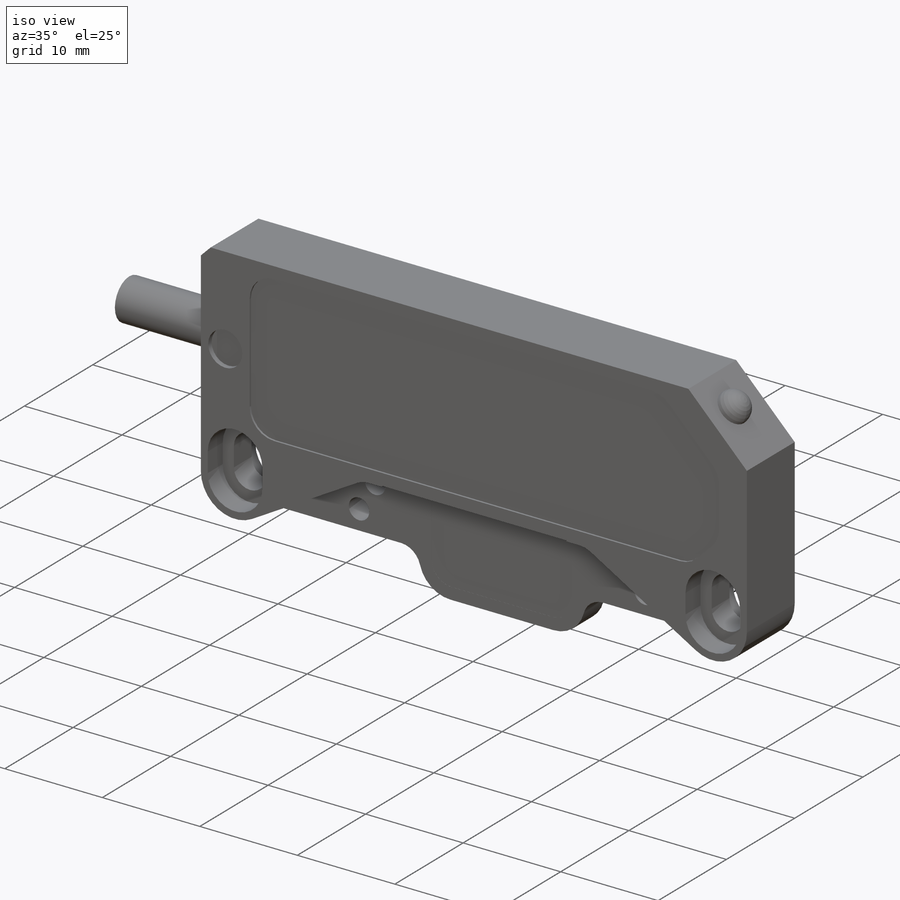
[diagram: iso view]
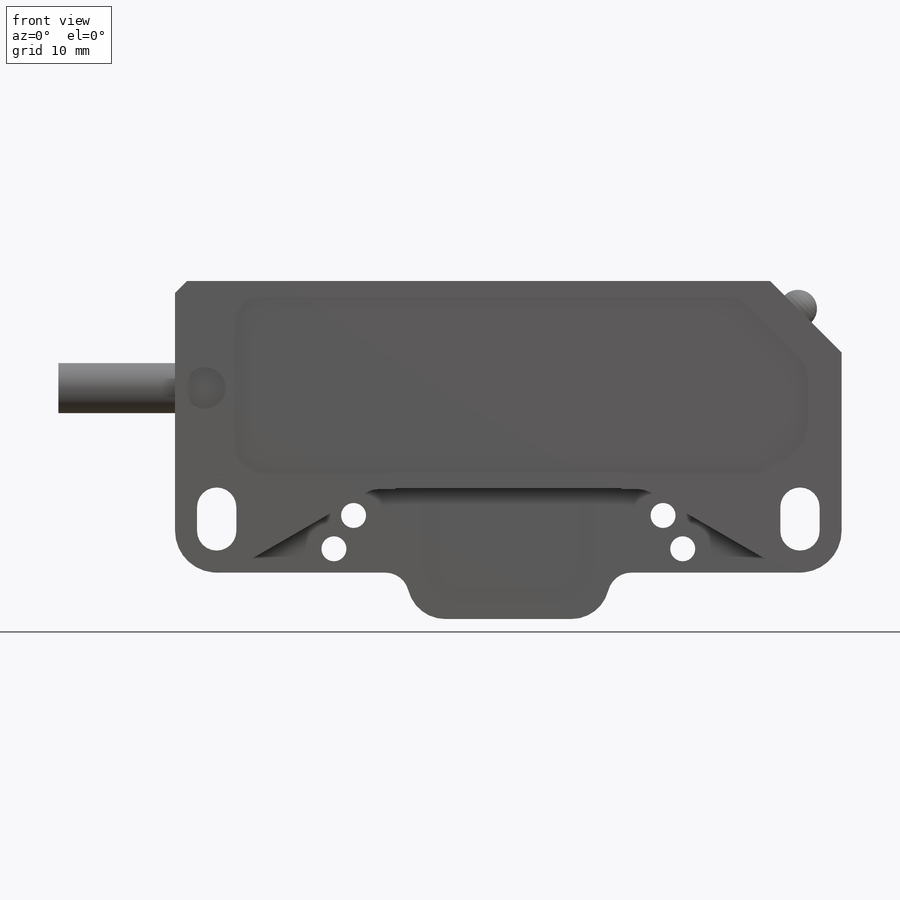
[diagram: front view]
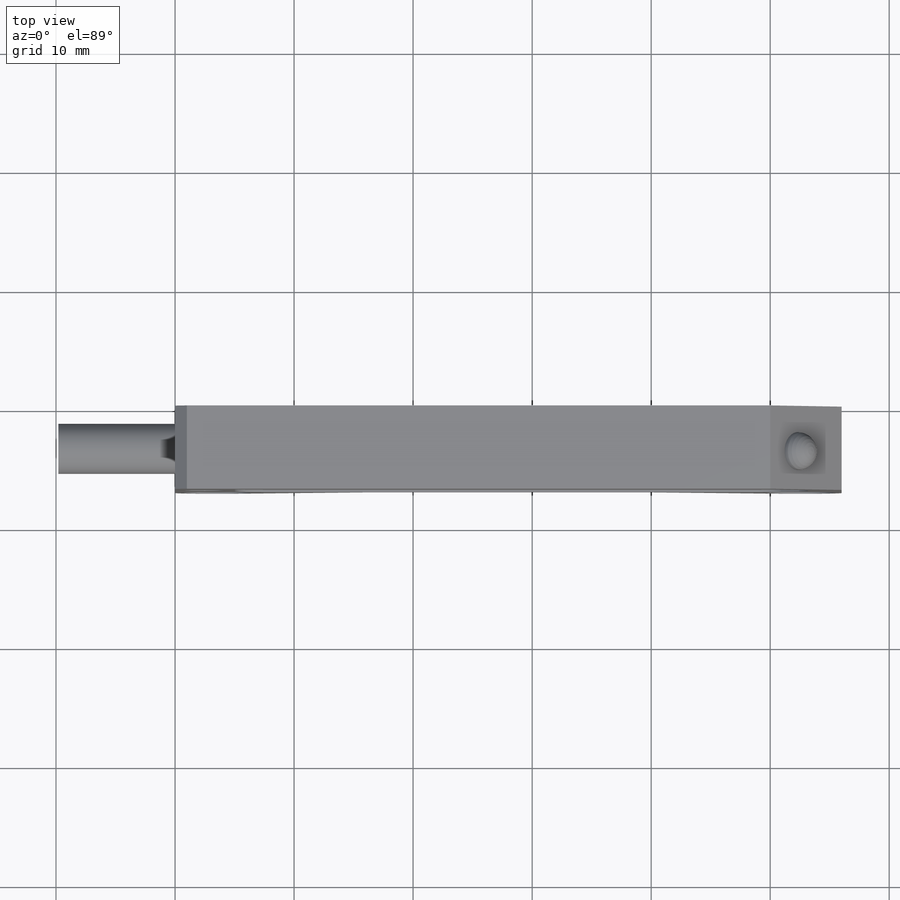
[diagram: top view]
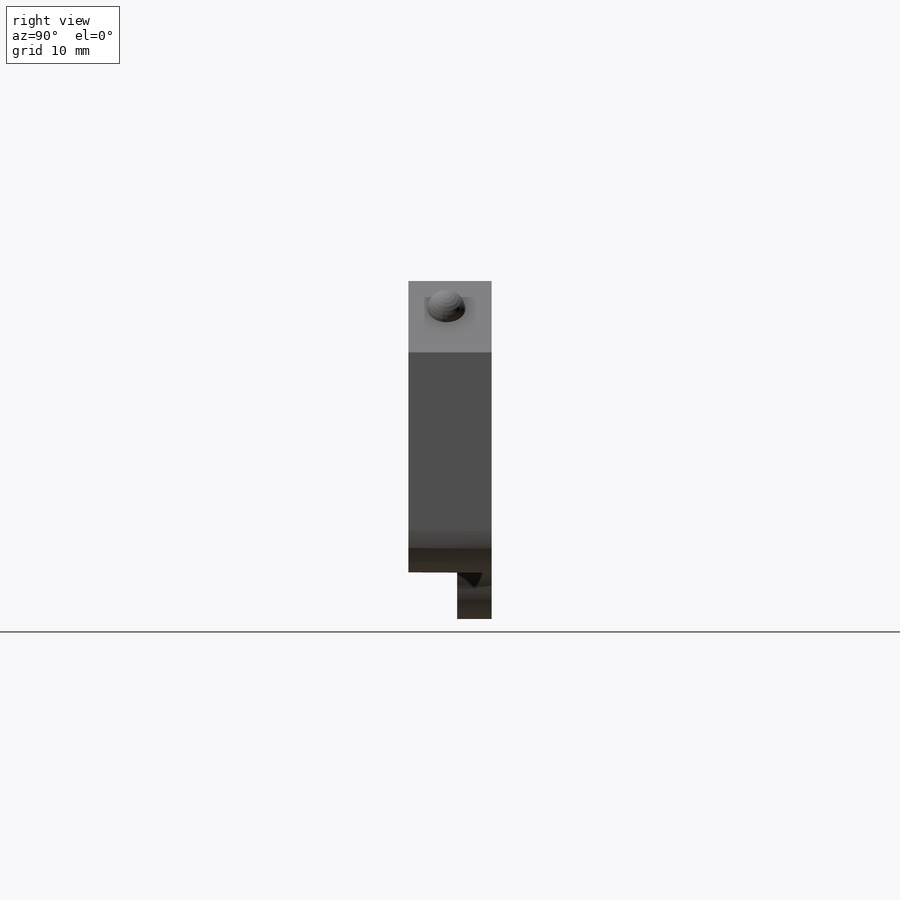
[diagram: right view]
SOLIDWORKS PART (.sldprt)
format: sldprt  version: not decoded by parser v0  size: 600,064 bytes
history: native  units: mm
features: sketch x11, cut_extrude x8, fillet x4, plane x4, extrude x2, chamfer x2, mirror x2, material x1, revolve x1 (+16 scaffold rows collapsed)
feature tree (51):
  scaffold x16  (default folders/planes/origin — collapsed)
  material  "Zinc AG40A (Zn-4Al-0.4Mg; Zamak 3), Cast"
  sketch  "Sketch1"  dims[c1.D4=3.5mm c1.D1=2.0mm c1.D6=3.8mm c1.D8=2.0mm c2.D1=16.0mm c2.D2=56.0mm c3.D1=17.4mm c3.D2=56.0mm c3.D3=~3.16136mm c4.D3=30.0deg c4.D4=21.0mm c4.D5=10.0mm c5.D3=11.4mm c5.D5=17.0mm c5.D6=21.0mm c5.D7=17.0mm c5.D8=~10.744766mm c6.D8=30.0deg c6.D9=~10.478064mm c7.D9=30.0deg]
  extrude  "Boss-Extrude1"  Depth=7mm
  sketch  "Sketch2"  dims[c1.D1=46.0mm c1.D2=15.0mm c1.D3=5.0mm c1.D4=1.2mm c2.D1=~1.997642mm c3.D1=45.0deg c3.D3=5.9mm c3.D5=48.15mm c3.D8=3.0mm c3.D6=5.0mm]
  cut_extrude  "Cut-Extrude1"  Depth=0.2mm
  fillet  "Fillet1"  Radius=2.5mm
  chamfer  "Chamfer1"  Distance=6mm Angle=45deg
  sketch  "Sketch6"  dims[c1.D1=5.6mm c1.D4=2.8mm c1.D2=2.0mm c1.D3=2.0mm c2.D4=~1.722204mm c2.D3=2.0mm c3.D4=8.0mm c3.D5=3.5mm c3.D6=19.5mm c3.D3=0.7mm c4.D4=21.0mm]
  cut_extrude  "Cut-Extrude4"  Depth=2.2mm
  plane  "Plane1"  Offset=3.5mm
  sketch  "Sketch9"  dims[D1=1.15mm]
  cut_extrude  "Cut-Extrude5"  [1 undecoded]
  mirror  "Mirror1"
  sketch  "Sketch14"  dims[D1=4.4mm D2=9.0mm D3=3.5mm]
  cut_extrude  "Cut-Extrude9"  Depth=0.2mm
  sketch  "Sketch19"  dims[c1.D2=1.25mm c1.D4=2.0mm c1.D1=14.4mm c2.D2=1.5mm c3.D2=90.0deg c4.D2=36.0mm c5.D2=90.0deg c6.D2=13.05mm c6.D3=1.2mm c7.D2=9.8mm]
  cut_extrude  "Cut-Extrude10"  Depth=4.11mm
  chamfer  "Chamfer3"  Distance=1mm Angle=45deg
  fillet  "Fillet3"  Radius=3.2mm
  sketch  "Sketch28"  dims[c1.D1=2.0mm c1.D5=1.0mm c2.D1=6.0mm c2.D2=~7.474101mm c3.D2=30.0deg c3.D3=28.0mm c3.D4=9.5mm c3.D5=7.0mm c3.D6=0.1mm]
  sketch  "Sketch29"  dims[c1.D1=30.0mm c1.D5=2.1mm c2.D1=2.0mm c2.D4=2.1mm c2.D6=2.0mm c2.D7=2.0mm c3.D1=2.0mm c3.D2=~47.183325mm c4.D2=60.0deg c4.D3=~54.520624mm c5.D3=60.0deg c5.D4=14.5mm c5.D1=26.0mm c5.D2=13.0mm c6.D3=19.7mm c6.D6=22.5mm c6.D7=~15.03091mm c6.D1=29.3mm c7.D7=14.65mm]
  cut_extrude  "Cut-Extrude16"  Depth=10mm
  plane  "Plane2"  Offset=28mm
  fillet  "Fillet5"  Radius=2mm
  fillet  "Fillet6"  Radius=2mm
  mirror  "Mirror2"
  sketch  "Sketch31"  dims[c1.D1=3.5mm c1.D2=3.5mm c1.D3=3.5mm c2.D2=2.5mm c2.D3=9.0mm]
  cut_extrude  "Cut-Extrude17"  Depth=0.5mm
  plane  "Plane3"  Offset=28mm
  cut_extrude  "Cut-Extrude19"  Depth=4.1mm
  plane  "Plane4"  Offset=3.8mm
  sketch  "Sketch32"  dims[D2=1.6mm D1=3.3mm]
  revolve  "Revolve1"  Angle=360deg
  sketch  "Sketch33"  dims[D1=4.2mm]
  extrude  "Boss-Extrude2"  Depth=10mm
decode coverage: 27 of 30 modeling features carry decoded parameters
note: ~ marks probable driven/reference dimensions
note: 1 parameter value undecoded
note: suppression state not decoded; provenance and decode notes live in map.json
